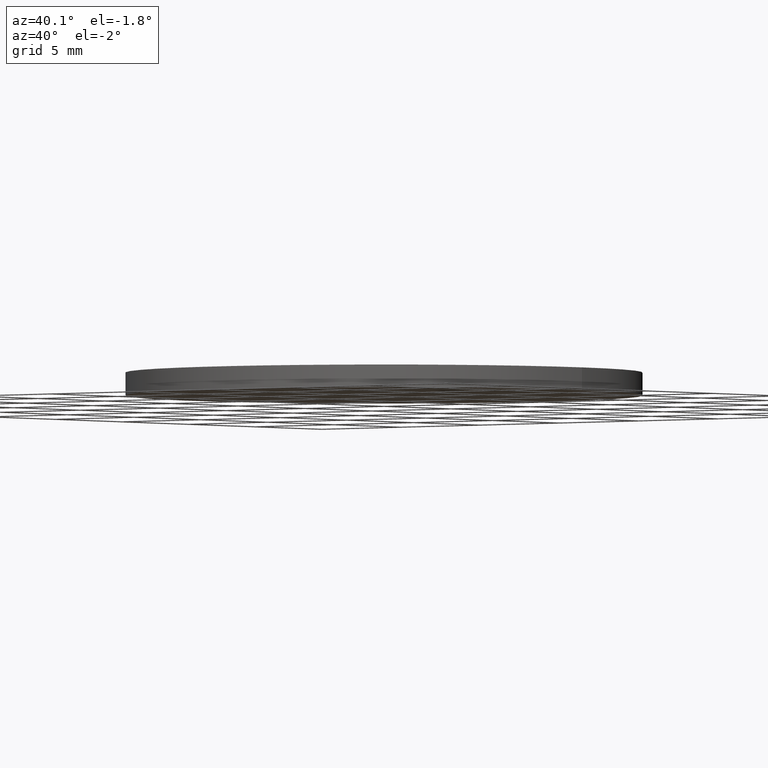
[diagram: clean part render]
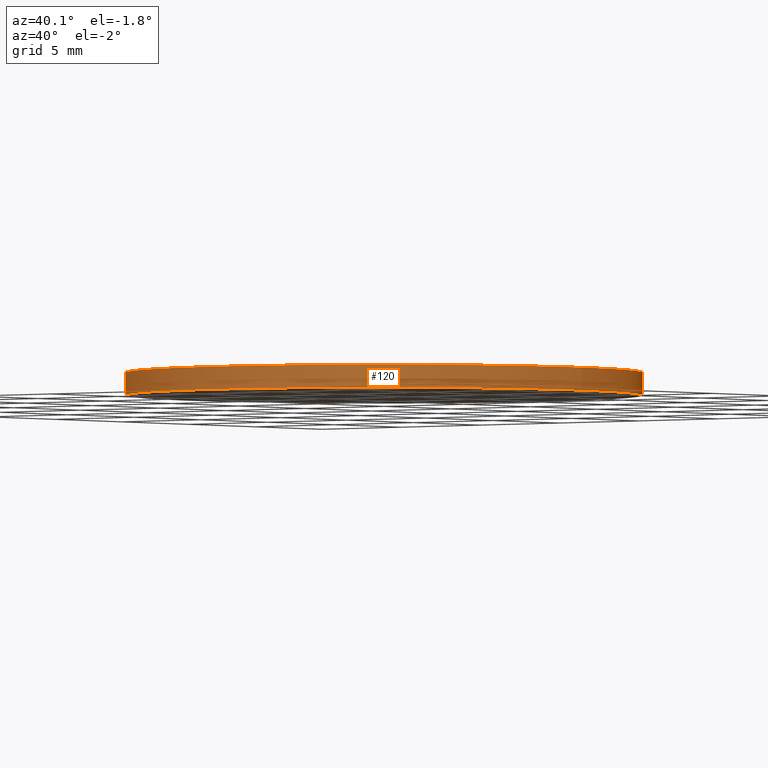
[diagram: same view with one face highlighted and labeled with its STEP entity id]
A machine part, auxiliary view. The second image highlights one B-rep face of the part: STEP entity #120.
In plain terms, the highlighted cylindrical surface (bore or boss wall) has radius 12.5 mm, axis along (-0, -0, -1).
Its self-contained STEP definition (entity closure, byte-faithful):
#4 = CARTESIAN_POINT ( 'NONE',  ( 0.000000000000000000, 0.000000000000000000, 1.100000000000000089 ) ) ;
#6 = DIRECTION ( 'NONE',  ( -0.000000000000000000, -0.000000000000000000, -1.000000000000000000 ) ) ;
#11 = EDGE_LOOP ( 'NONE', ( #76 ) ) ;
#12 = CARTESIAN_POINT ( 'NONE',  ( 12.50000000000000000, 0.000000000000000000, 1.100000000000000089 ) ) ;
#16 = FACE_OUTER_BOUND ( 'NONE', #11, .T. ) ;
#23 = CARTESIAN_POINT ( 'NONE',  ( 0.000000000000000000, 0.000000000000000000, 0.000000000000000000 ) ) ;
#30 = DIRECTION ( 'NONE',  ( 1.000000000000000000, 0.000000000000000000, 0.000000000000000000 ) ) ;
#36 = AXIS2_PLACEMENT_3D ( 'NONE', #23, #107, #30 ) ;
#42 = DIRECTION ( 'NONE',  ( 1.000000000000000000, 0.000000000000000000, 0.000000000000000000 ) ) ;
#56 = CYLINDRICAL_SURFACE ( 'NONE', #84, 12.50000000000000000 ) ;
#71 = EDGE_CURVE ( 'NONE', #113, #113, #96, .T. ) ;
#73 = AXIS2_PLACEMENT_3D ( 'NONE', #4, #133, #42 ) ;
#75 = FACE_OUTER_BOUND ( 'NONE', #112, .T. ) ;
#76 = ORIENTED_EDGE ( 'NONE', *, *, #71, .F. ) ;
#77 = ORIENTED_EDGE ( 'NONE', *, *, #116, .T. ) ;
#80 = CIRCLE ( 'NONE', #36, 12.50000000000000000 ) ;
#84 = AXIS2_PLACEMENT_3D ( 'NONE', #99, #6, #125 ) ;
#87 = CARTESIAN_POINT ( 'NONE',  ( 12.50000000000000000, 0.000000000000000000, 0.000000000000000000 ) ) ;
#96 = CIRCLE ( 'NONE', #73, 12.50000000000000000 ) ;
#99 = CARTESIAN_POINT ( 'NONE',  ( 0.000000000000000000, 0.000000000000000000, 1.100000000000000089 ) ) ;
#107 = DIRECTION ( 'NONE',  ( 0.000000000000000000, 0.000000000000000000, 1.000000000000000000 ) ) ;
#112 = EDGE_LOOP ( 'NONE', ( #77 ) ) ;
#113 = VERTEX_POINT ( 'NONE', #12 ) ;
#116 = EDGE_CURVE ( 'NONE', #121, #121, #80, .T. ) ;
#120 = ADVANCED_FACE ( 'NONE', ( #16, #75 ), #56, .T. ) ;
#121 = VERTEX_POINT ( 'NONE', #87 ) ;
#125 = DIRECTION ( 'NONE',  ( -1.000000000000000000, 0.000000000000000000, 0.000000000000000000 ) ) ;
#133 = DIRECTION ( 'NONE',  ( 0.000000000000000000, 0.000000000000000000, 1.000000000000000000 ) ) ;